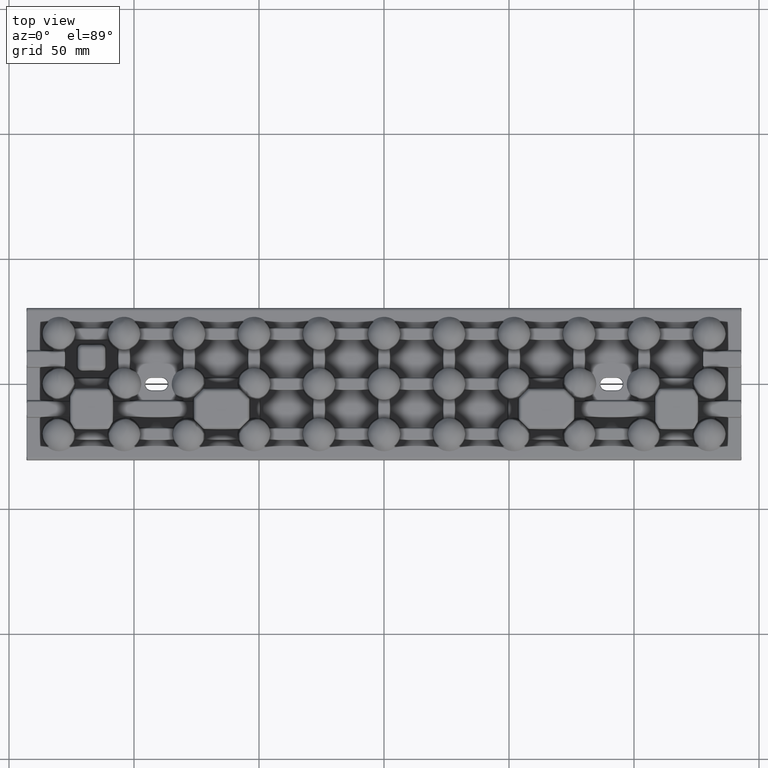
[diagram: clean part render]
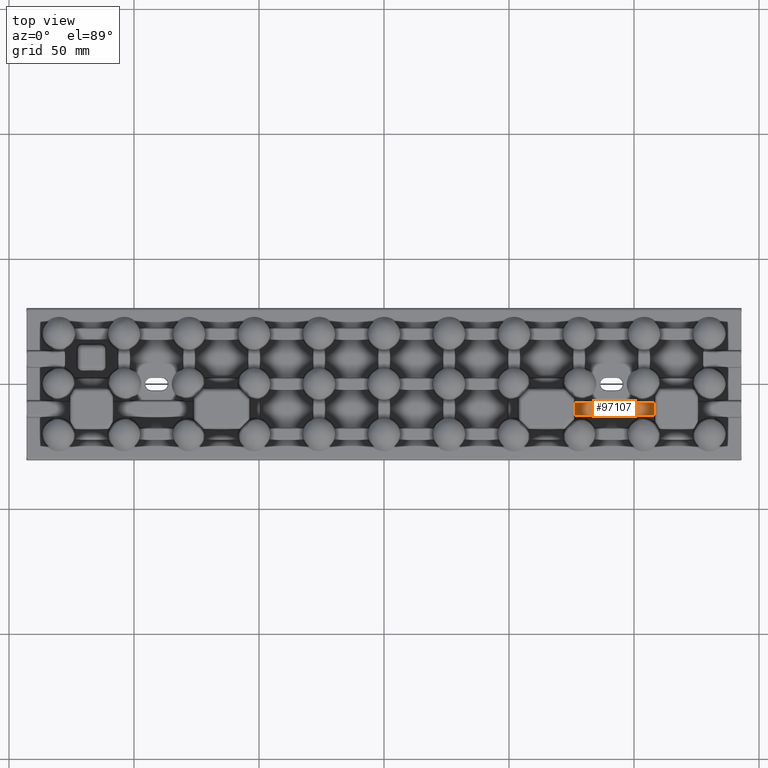
[diagram: same view with one face highlighted and labeled with its STEP entity id]
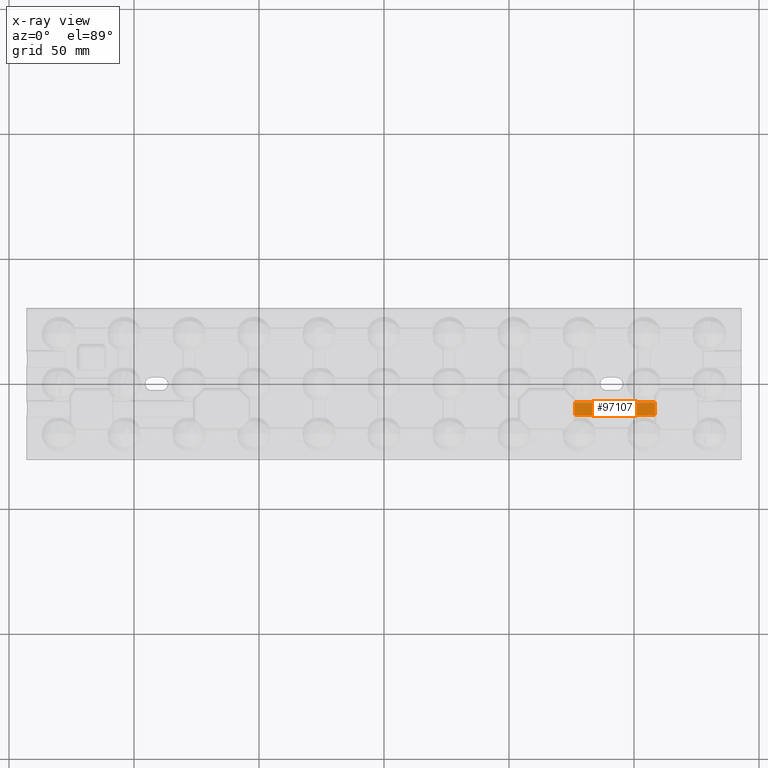
[diagram: x-ray of the same camera — body ghosted, the highlighted face saturated]
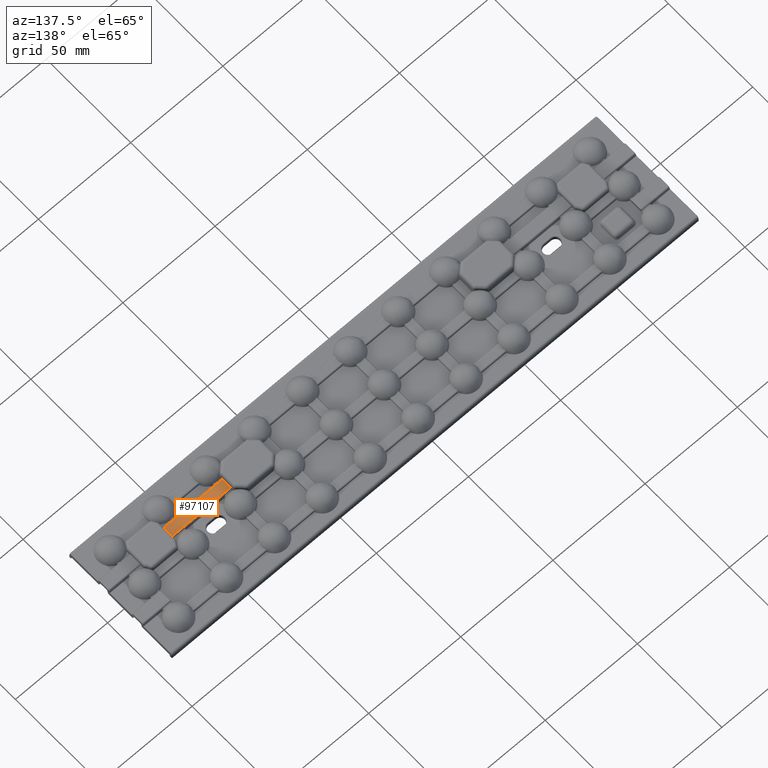
[diagram: same view with one face highlighted and labeled with its STEP entity id]
A machine part, top view. The second image highlights one B-rep face of the part: STEP entity #97107.
The next image is the same camera in x-ray: the body ghosted, the highlighted face saturated — about 0% of this face is hidden behind the body in this view.
A second angle (auxiliary view) of the same face is appended — the face is thin or edge-on in the first view.
In plain terms, the highlighted planar face has unit normal (0, 0, -1).
Its self-contained STEP definition (entity closure, byte-faithful):
#4157 = VECTOR ( 'NONE', #94397, 1000.000000000000000 ) ;
#14342 = LINE ( 'NONE', #49323, #95256 ) ;
#17204 = VERTEX_POINT ( 'NONE', #94974 ) ;
#19691 = ORIENTED_EDGE ( 'NONE', *, *, #102650, .T. ) ;
#22159 = LINE ( 'NONE', #81942, #105666 ) ;
#22691 = CARTESIAN_POINT ( 'NONE',  ( 76.38285556752030900, -7.474844346342743900, 3.500000000000009800 ) ) ;
#23809 = LINE ( 'NONE', #60796, #4157 ) ;
#23959 = DIRECTION ( 'NONE',  ( 1.000000000000000000, -0.0000000000000000000, -0.0000000000000000000 ) ) ;
#24636 = CARTESIAN_POINT ( 'NONE',  ( 108.2171444324795300, -6.949688692685463700, 3.500000000000009800 ) ) ;
#31735 = VECTOR ( 'NONE', #82959, 1000.000000000000000 ) ;
#32441 = EDGE_CURVE ( 'NONE', #17204, #73410, #95642, .T. ) ;
#34894 = ORIENTED_EDGE ( 'NONE', *, *, #71886, .T. ) ;
#41024 = CARTESIAN_POINT ( 'NONE',  ( 76.38285556752030900, -12.52515565365729700, 3.500000000000009300 ) ) ;
#48384 = DIRECTION ( 'NONE',  ( 0.0000000000000000000, 1.000000000000000000, 1.421759372409786700E-016 ) ) ;
#49323 = CARTESIAN_POINT ( 'NONE',  ( 150.3472808250609500, -7.474844346342743900, 3.500000000000009800 ) ) ;
#51575 = VERTEX_POINT ( 'NONE', #22691 ) ;
#52469 = FACE_OUTER_BOUND ( 'NONE', #67227, .T. ) ;
#56349 = PLANE ( 'NONE',  #97850 ) ;
#58107 = CARTESIAN_POINT ( 'NONE',  ( 108.2171444324795300, -12.52515565365729700, 3.500000000000008900 ) ) ;
#60796 = CARTESIAN_POINT ( 'NONE',  ( 76.38285556752030900, -5.378679656440368700, 3.500000000000010200 ) ) ;
#67227 = EDGE_LOOP ( 'NONE', ( #77154, #34894, #80263, #19691 ) ) ;
#68741 = EDGE_CURVE ( 'NONE', #76476, #51575, #23809, .T. ) ;
#71886 = EDGE_CURVE ( 'NONE', #17204, #51575, #14342, .T. ) ;
#73410 = VERTEX_POINT ( 'NONE', #58107 ) ;
#76476 = VERTEX_POINT ( 'NONE', #41024 ) ;
#77154 = ORIENTED_EDGE ( 'NONE', *, *, #32441, .F. ) ;
#80263 = ORIENTED_EDGE ( 'NONE', *, *, #68741, .F. ) ;
#81942 = CARTESIAN_POINT ( 'NONE',  ( 150.3472808250609500, -12.52515565365729700, 3.500000000000008900 ) ) ;
#82959 = DIRECTION ( 'NONE',  ( -2.506945374309802800E-017, -1.000000000000000000, -1.421759372409786700E-016 ) ) ;
#89904 = CARTESIAN_POINT ( 'NONE',  ( 150.3472808250609500, -6.949688692685464600, 3.500000000000009800 ) ) ;
#94397 = DIRECTION ( 'NONE',  ( -2.506945374309802800E-017, 1.000000000000000000, 1.421759372409786700E-016 ) ) ;
#94974 = CARTESIAN_POINT ( 'NONE',  ( 108.2171444324795300, -7.474844346342743900, 3.500000000000009800 ) ) ;
#95256 = VECTOR ( 'NONE', #99247, 1000.000000000000000 ) ;
#95642 = LINE ( 'NONE', #24636, #31735 ) ;
#97107 = ADVANCED_FACE ( 'NONE', ( #52469 ), #56349, .F. ) ;
#97850 = AXIS2_PLACEMENT_3D ( 'NONE', #89904, #98301, #48384 ) ;
#98301 = DIRECTION ( 'NONE',  ( 0.0000000000000000000, 1.421759372409786700E-016, -1.000000000000000000 ) ) ;
#99247 = DIRECTION ( 'NONE',  ( -1.000000000000000000, 0.0000000000000000000, 0.0000000000000000000 ) ) ;
#102650 = EDGE_CURVE ( 'NONE', #76476, #73410, #22159, .T. ) ;
#105666 = VECTOR ( 'NONE', #23959, 1000.000000000000000 ) ;